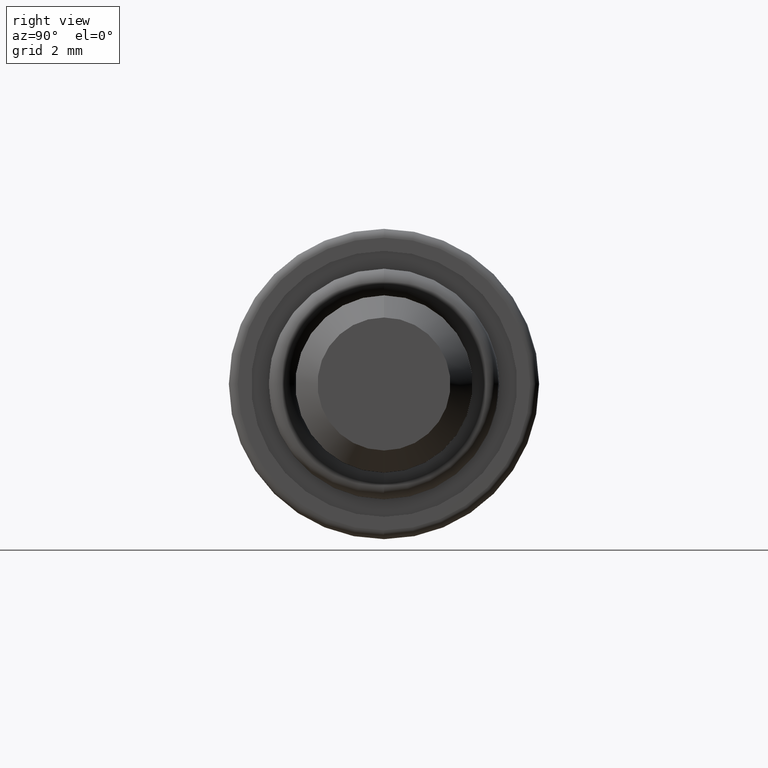
[diagram: clean part render]
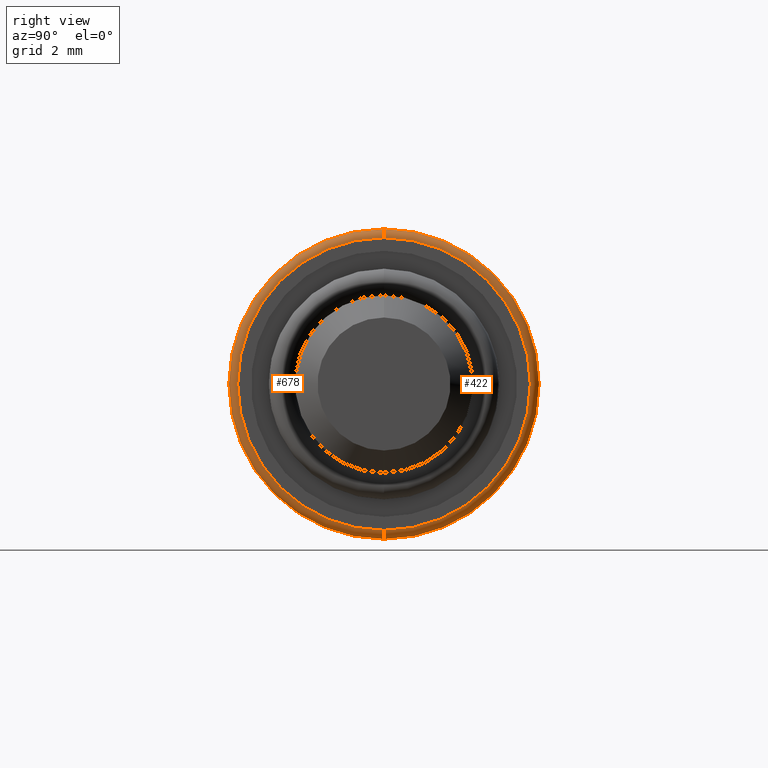
[diagram: same view with one multi-face feature highlighted, each face labeled with its STEP entity id]
A machine part, right view. The highlighted faces form ONE feature: a constant-radius fillet chain: 2 tangent blend faces with common blend radius 0.2 mm. The faces share edges in the B-rep.
Their STEP definitions:
[1] entity #678 (Torus):
#33 = DIRECTION ( 'NONE',  ( 0.0000000000000000000, 0.0000000000000000000, -1.000000000000000000 ) ) ;
#44 = VERTEX_POINT ( 'NONE', #633 ) ;
#56 = CARTESIAN_POINT ( 'NONE',  ( -0.2000000000000000900, 4.041334437186266000E-016, 3.300000000000000300 ) ) ;
#73 = ORIENTED_EDGE ( 'NONE', *, *, #575, .F. ) ;
#110 = DIRECTION ( 'NONE',  ( 1.000000000000000000, 0.0000000000000000000, 0.0000000000000000000 ) ) ;
#140 = EDGE_CURVE ( 'NONE', #738, #44, #448, .T. ) ;
#191 = CIRCLE ( 'NONE', #511, 3.300000000000000300 ) ;
#207 = AXIS2_PLACEMENT_3D ( 'NONE', #396, #110, #33 ) ;
#212 = DIRECTION ( 'NONE',  ( 0.0000000000000000000, 0.0000000000000000000, -1.000000000000000000 ) ) ;
#215 = DIRECTION ( 'NONE',  ( -1.000000000000000000, -0.0000000000000000000, -0.0000000000000000000 ) ) ;
#218 = DIRECTION ( 'NONE',  ( 1.000000000000000000, 0.0000000000000000000, 0.0000000000000000000 ) ) ;
#252 = DIRECTION ( 'NONE',  ( 0.0000000000000000000, 0.0000000000000000000, -1.000000000000000000 ) ) ;
#270 = CARTESIAN_POINT ( 'NONE',  ( 0.0000000000000000000, 4.163799117101001500E-016, 3.300000000000000300 ) ) ;
#306 = CARTESIAN_POINT ( 'NONE',  ( 0.0000000000000000000, 0.0000000000000000000, -3.300000000000000300 ) ) ;
#387 = DIRECTION ( 'NONE',  ( 0.0000000000000000000, 1.000000000000000000, -1.224646799147353200E-016 ) ) ;
#395 = CARTESIAN_POINT ( 'NONE',  ( -0.2000000000000000900, 0.0000000000000000000, 0.0000000000000000000 ) ) ;
#396 = CARTESIAN_POINT ( 'NONE',  ( -0.2000000000000000900, 0.0000000000000000000, 0.0000000000000000000 ) ) ;
#402 = FACE_OUTER_BOUND ( 'NONE', #671, .T. ) ;
#405 = ORIENTED_EDGE ( 'NONE', *, *, #614, .F. ) ;
#444 = VERTEX_POINT ( 'NONE', #306 ) ;
#448 = CIRCLE ( 'NONE', #510, 3.500000000000000400 ) ;
#479 = DIRECTION ( 'NONE',  ( 0.0000000000000000000, -1.000000000000000000, 0.0000000000000000000 ) ) ;
#480 = CARTESIAN_POINT ( 'NONE',  ( -0.2000000000000000900, 0.0000000000000000000, -3.300000000000000300 ) ) ;
#483 = CIRCLE ( 'NONE', #680, 0.2000000000000000900 ) ;
#500 = CIRCLE ( 'NONE', #556, 0.2000000000000000900 ) ;
#510 = AXIS2_PLACEMENT_3D ( 'NONE', #395, #215, #252 ) ;
#511 = AXIS2_PLACEMENT_3D ( 'NONE', #529, #218, #212 ) ;
#529 = CARTESIAN_POINT ( 'NONE',  ( 0.0000000000000000000, 0.0000000000000000000, 0.0000000000000000000 ) ) ;
#550 = TOROIDAL_SURFACE ( 'NONE', #207, 3.300000000000000300, 0.2000000000000000100 ) ;
#556 = AXIS2_PLACEMENT_3D ( 'NONE', #480, #479, #664 ) ;
#575 = EDGE_CURVE ( 'NONE', #803, #444, #191, .T. ) ;
#609 = EDGE_CURVE ( 'NONE', #738, #444, #500, .T. ) ;
#614 = EDGE_CURVE ( 'NONE', #44, #803, #483, .T. ) ;
#633 = CARTESIAN_POINT ( 'NONE',  ( -0.2000000000000000900, 4.286263797015737100E-016, 3.500000000000000400 ) ) ;
#664 = DIRECTION ( 'NONE',  ( 0.0000000000000000000, 0.0000000000000000000, -1.000000000000000000 ) ) ;
#671 = EDGE_LOOP ( 'NONE', ( #405, #699, #802, #73 ) ) ;
#678 = ADVANCED_FACE ( 'NONE', ( #402 ), #550, .T. ) ;
#680 = AXIS2_PLACEMENT_3D ( 'NONE', #56, #387, #801 ) ;
#699 = ORIENTED_EDGE ( 'NONE', *, *, #140, .F. ) ;
#738 = VERTEX_POINT ( 'NONE', #794 ) ;
#794 = CARTESIAN_POINT ( 'NONE',  ( -0.2000000000000000900, 0.0000000000000000000, -3.500000000000000400 ) ) ;
#801 = DIRECTION ( 'NONE',  ( 0.0000000000000000000, 1.224646799147353200E-016, 1.000000000000000000 ) ) ;
#802 = ORIENTED_EDGE ( 'NONE', *, *, #609, .T. ) ;
#803 = VERTEX_POINT ( 'NONE', #270 ) ;
[2] entity #422 (Torus):
#44 = VERTEX_POINT ( 'NONE', #633 ) ;
#53 = EDGE_CURVE ( 'NONE', #444, #803, #676, .T. ) ;
#56 = CARTESIAN_POINT ( 'NONE',  ( -0.2000000000000000900, 4.041334437186266000E-016, 3.300000000000000300 ) ) ;
#150 = CIRCLE ( 'NONE', #584, 3.500000000000000400 ) ;
#157 = AXIS2_PLACEMENT_3D ( 'NONE', #314, #648, #255 ) ;
#181 = AXIS2_PLACEMENT_3D ( 'NONE', #401, #705, #472 ) ;
#234 = ORIENTED_EDGE ( 'NONE', *, *, #53, .F. ) ;
#255 = DIRECTION ( 'NONE',  ( 0.0000000000000000000, 0.0000000000000000000, -1.000000000000000000 ) ) ;
#270 = CARTESIAN_POINT ( 'NONE',  ( 0.0000000000000000000, 4.163799117101001500E-016, 3.300000000000000300 ) ) ;
#306 = CARTESIAN_POINT ( 'NONE',  ( 0.0000000000000000000, 0.0000000000000000000, -3.300000000000000300 ) ) ;
#312 = ORIENTED_EDGE ( 'NONE', *, *, #614, .T. ) ;
#314 = CARTESIAN_POINT ( 'NONE',  ( -0.2000000000000000900, 0.0000000000000000000, 0.0000000000000000000 ) ) ;
#345 = CARTESIAN_POINT ( 'NONE',  ( -0.2000000000000000900, 0.0000000000000000000, 0.0000000000000000000 ) ) ;
#353 = ORIENTED_EDGE ( 'NONE', *, *, #797, .F. ) ;
#387 = DIRECTION ( 'NONE',  ( 0.0000000000000000000, 1.000000000000000000, -1.224646799147353200E-016 ) ) ;
#401 = CARTESIAN_POINT ( 'NONE',  ( 0.0000000000000000000, 0.0000000000000000000, 0.0000000000000000000 ) ) ;
#413 = DIRECTION ( 'NONE',  ( -1.000000000000000000, -0.0000000000000000000, -0.0000000000000000000 ) ) ;
#422 = ADVANCED_FACE ( 'NONE', ( #497 ), #809, .T. ) ;
#444 = VERTEX_POINT ( 'NONE', #306 ) ;
#472 = DIRECTION ( 'NONE',  ( 0.0000000000000000000, 0.0000000000000000000, -1.000000000000000000 ) ) ;
#479 = DIRECTION ( 'NONE',  ( 0.0000000000000000000, -1.000000000000000000, 0.0000000000000000000 ) ) ;
#480 = CARTESIAN_POINT ( 'NONE',  ( -0.2000000000000000900, 0.0000000000000000000, -3.300000000000000300 ) ) ;
#483 = CIRCLE ( 'NONE', #680, 0.2000000000000000900 ) ;
#497 = FACE_OUTER_BOUND ( 'NONE', #711, .T. ) ;
#500 = CIRCLE ( 'NONE', #556, 0.2000000000000000900 ) ;
#556 = AXIS2_PLACEMENT_3D ( 'NONE', #480, #479, #664 ) ;
#584 = AXIS2_PLACEMENT_3D ( 'NONE', #345, #413, #751 ) ;
#597 = ORIENTED_EDGE ( 'NONE', *, *, #609, .F. ) ;
#609 = EDGE_CURVE ( 'NONE', #738, #444, #500, .T. ) ;
#614 = EDGE_CURVE ( 'NONE', #44, #803, #483, .T. ) ;
#633 = CARTESIAN_POINT ( 'NONE',  ( -0.2000000000000000900, 4.286263797015737100E-016, 3.500000000000000400 ) ) ;
#648 = DIRECTION ( 'NONE',  ( 1.000000000000000000, 0.0000000000000000000, 0.0000000000000000000 ) ) ;
#664 = DIRECTION ( 'NONE',  ( 0.0000000000000000000, 0.0000000000000000000, -1.000000000000000000 ) ) ;
#676 = CIRCLE ( 'NONE', #181, 3.300000000000000300 ) ;
#680 = AXIS2_PLACEMENT_3D ( 'NONE', #56, #387, #801 ) ;
#705 = DIRECTION ( 'NONE',  ( 1.000000000000000000, 0.0000000000000000000, 0.0000000000000000000 ) ) ;
#711 = EDGE_LOOP ( 'NONE', ( #353, #312, #234, #597 ) ) ;
#738 = VERTEX_POINT ( 'NONE', #794 ) ;
#751 = DIRECTION ( 'NONE',  ( 0.0000000000000000000, 0.0000000000000000000, -1.000000000000000000 ) ) ;
#794 = CARTESIAN_POINT ( 'NONE',  ( -0.2000000000000000900, 0.0000000000000000000, -3.500000000000000400 ) ) ;
#797 = EDGE_CURVE ( 'NONE', #44, #738, #150, .T. ) ;
#801 = DIRECTION ( 'NONE',  ( 0.0000000000000000000, 1.224646799147353200E-016, 1.000000000000000000 ) ) ;
#803 = VERTEX_POINT ( 'NONE', #270 ) ;
#809 = TOROIDAL_SURFACE ( 'NONE', #157, 3.300000000000000300, 0.2000000000000000100 ) ;